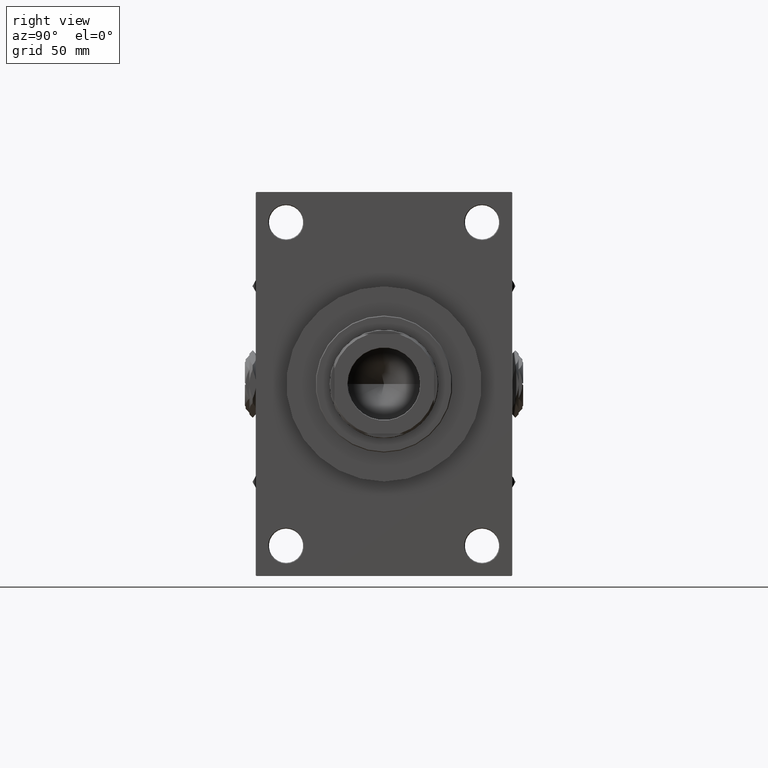
[diagram: clean part render]
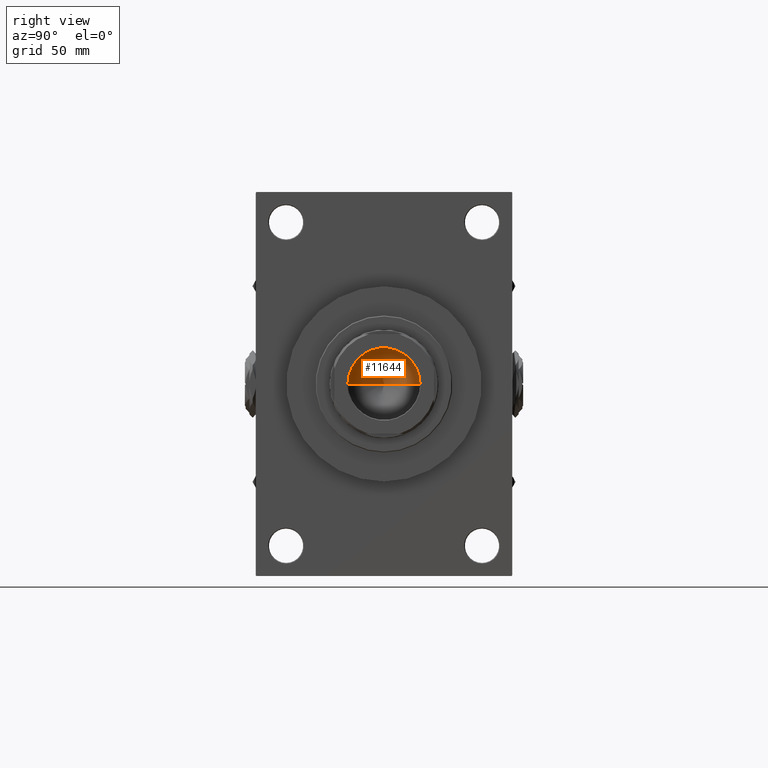
[diagram: same view with one face highlighted and labeled with its STEP entity id]
A machine part, right view. The second image highlights one B-rep face of the part: STEP entity #11644.
In plain terms, the highlighted conical surface has half-angle 59 deg.
Its self-contained STEP definition (entity closure, byte-faithful):
#2104 = AXIS2_PLACEMENT_3D ( 'NONE', #10471, #49600, #26393 ) ;
#3421 = EDGE_CURVE ( 'NONE', #31625, #51200, #50955, .T. ) ;
#10471 = CARTESIAN_POINT ( 'NONE',  ( 0.000000000000000000, 0.000000000000000000, 209.0000000000000284 ) ) ;
#10797 = DIRECTION ( 'NONE',  ( 0.8571673007021117785, 0.000000000000000000, 0.5150380749100550437 ) ) ;
#11644 = ADVANCED_FACE ( 'NONE', ( #45819 ), #33340, .F. ) ;
#12042 = DIRECTION ( 'NONE',  ( -0.8571673007021117785, 1.049727191138617956E-16, 0.5150380749100550437 ) ) ;
#13308 = EDGE_CURVE ( 'NONE', #31625, #34363, #18563, .T. ) ;
#14237 = VECTOR ( 'NONE', #12042, 1000.000000000000000 ) ;
#14242 = DIRECTION ( 'NONE',  ( 1.000000000000000000, 0.000000000000000000, 0.000000000000000000 ) ) ;
#18563 = LINE ( 'NONE', #34497, #14237 ) ;
#18917 = CARTESIAN_POINT ( 'NONE',  ( -23.24999999999998579, 2.847303808017594561E-15, 209.0000000000000284 ) ) ;
#19931 = EDGE_LOOP ( 'NONE', ( #29457, #32007, #27605 ) ) ;
#22870 = CARTESIAN_POINT ( 'NONE',  ( 0.000000000000000000, 0.000000000000000000, 209.0000000000000284 ) ) ;
#22967 = CIRCLE ( 'NONE', #2104, 23.24999999999998579 ) ;
#25667 = VECTOR ( 'NONE', #10797, 1000.000000000000000 ) ;
#26393 = DIRECTION ( 'NONE',  ( 1.000000000000000000, 0.000000000000000000, 0.000000000000000000 ) ) ;
#27605 = ORIENTED_EDGE ( 'NONE', *, *, #37712, .T. ) ;
#28155 = CARTESIAN_POINT ( 'NONE',  ( -1.584115414415908206E-14, 0.000000000000000000, 195.0299906076092213 ) ) ;
#29457 = ORIENTED_EDGE ( 'NONE', *, *, #3421, .F. ) ;
#31625 = VERTEX_POINT ( 'NONE', #28155 ) ;
#32007 = ORIENTED_EDGE ( 'NONE', *, *, #13308, .T. ) ;
#33340 = CONICAL_SURFACE ( 'NONE', #44153, 23.24999999999998579, 1.029744258676653423 ) ;
#34363 = VERTEX_POINT ( 'NONE', #18917 ) ;
#34497 = CARTESIAN_POINT ( 'NONE',  ( -23.24999999999998579, 2.847303808017594561E-15, 209.0000000000000284 ) ) ;
#37712 = EDGE_CURVE ( 'NONE', #34363, #51200, #22967, .T. ) ;
#38767 = DIRECTION ( 'NONE',  ( -0.000000000000000000, -0.000000000000000000, 1.000000000000000000 ) ) ;
#42084 = CARTESIAN_POINT ( 'NONE',  ( 23.24999999999998579, 0.000000000000000000, 209.0000000000000284 ) ) ;
#44153 = AXIS2_PLACEMENT_3D ( 'NONE', #22870, #38767, #14242 ) ;
#45819 = FACE_OUTER_BOUND ( 'NONE', #19931, .T. ) ;
#49600 = DIRECTION ( 'NONE',  ( -0.000000000000000000, -0.000000000000000000, 1.000000000000000000 ) ) ;
#50955 = LINE ( 'NONE', #42084, #25667 ) ;
#51057 = CARTESIAN_POINT ( 'NONE',  ( 23.24999999999998579, 0.000000000000000000, 209.0000000000000284 ) ) ;
#51200 = VERTEX_POINT ( 'NONE', #51057 ) ;